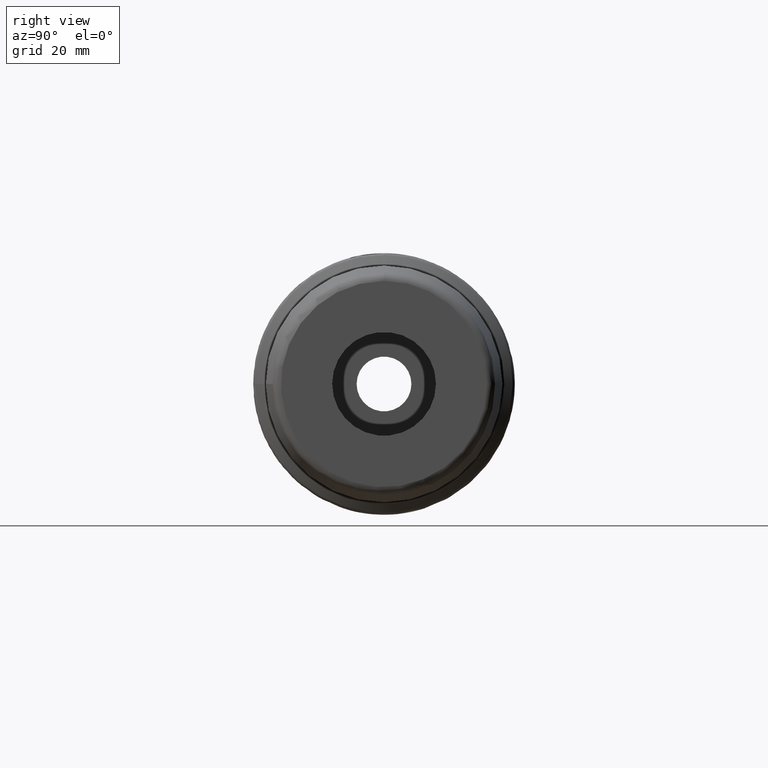
[diagram: clean part render]
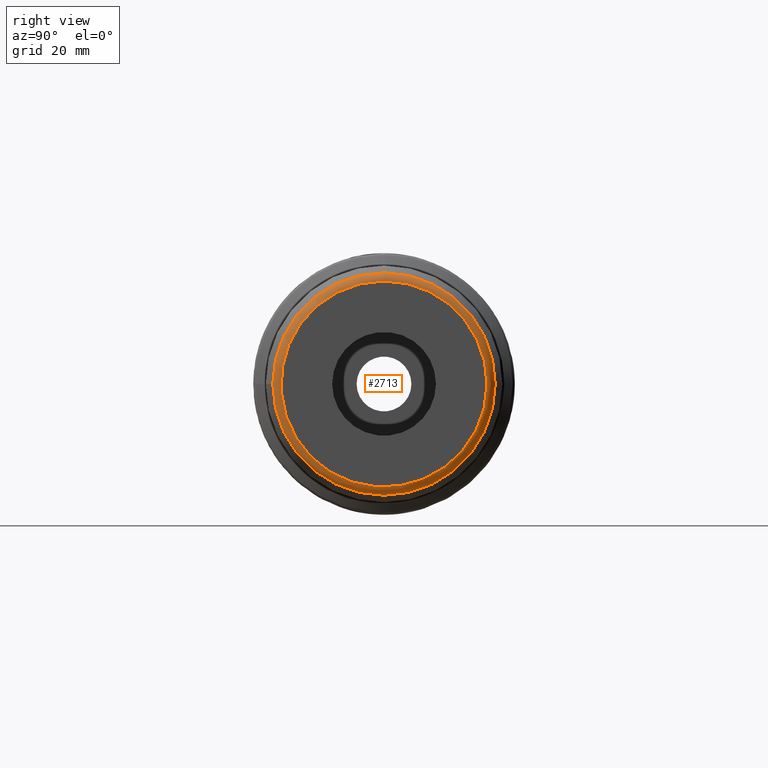
[diagram: same view with one face highlighted and labeled with its STEP entity id]
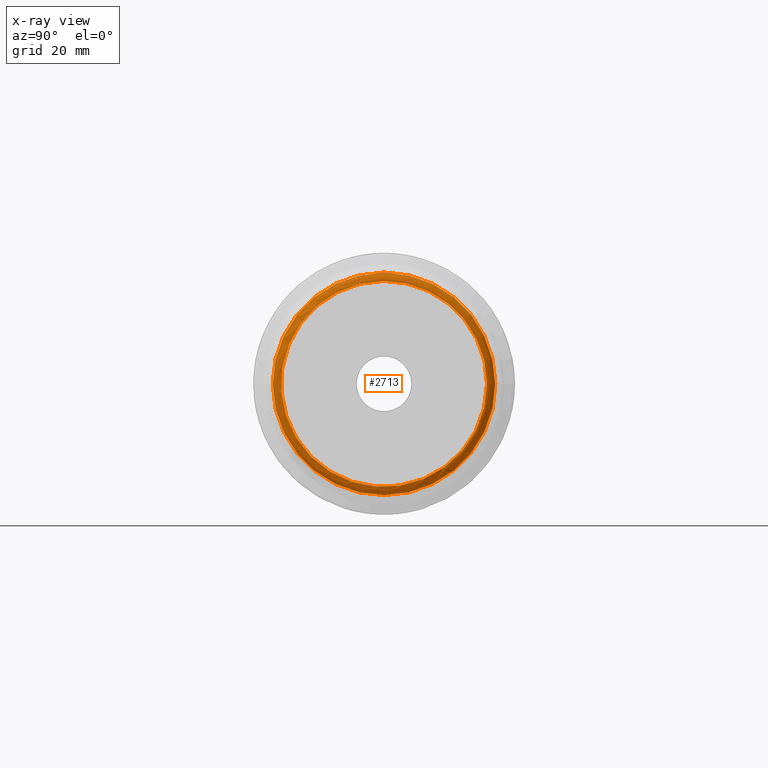
[diagram: x-ray of the same camera — body ghosted, the highlighted face saturated]
A machine part, right view. The second image highlights one B-rep face of the part: STEP entity #2713.
The next image is the same camera in x-ray: the body ghosted, the highlighted face saturated — about 0% of this face is hidden behind the body in this view.
In plain terms, the highlighted toroidal blend (fillet) surface has major radius 24.8218 mm and minor (blend) radius 2 mm.
Its self-contained STEP definition (entity closure, byte-faithful):
#495=FACE_OUTER_BOUND('',#640,.T.);
#640=EDGE_LOOP('',(#1996,#1997,#1998,#1999,#2000,#2001,#2002));
#860=CIRCLE('',#2973,26.7914162436698);
#861=CIRCLE('',#2974,26.7914162436698);
#862=CIRCLE('',#2975,26.7914162436698);
#863=CIRCLE('',#2977,24.8218007376454);
#864=CIRCLE('',#2978,2.);
#865=CIRCLE('',#2979,24.8218007376454);
#1093=VERTEX_POINT('',#4549);
#1094=VERTEX_POINT('',#4550);
#1095=VERTEX_POINT('',#4552);
#1096=VERTEX_POINT('',#4557);
#1097=VERTEX_POINT('',#4558);
#1433=EDGE_CURVE('',#1093,#1094,#860,.T.);
#1434=EDGE_CURVE('',#1095,#1093,#861,.T.);
#1436=EDGE_CURVE('',#1094,#1095,#862,.T.);
#1437=EDGE_CURVE('',#1096,#1097,#863,.T.);
#1438=EDGE_CURVE('',#1097,#1094,#864,.T.);
#1439=EDGE_CURVE('',#1097,#1096,#865,.T.);
#1996=ORIENTED_EDGE('',*,*,#1437,.T.);
#1997=ORIENTED_EDGE('',*,*,#1438,.T.);
#1998=ORIENTED_EDGE('',*,*,#1436,.T.);
#1999=ORIENTED_EDGE('',*,*,#1434,.T.);
#2000=ORIENTED_EDGE('',*,*,#1433,.T.);
#2001=ORIENTED_EDGE('',*,*,#1438,.F.);
#2002=ORIENTED_EDGE('',*,*,#1439,.T.);
#2657=TOROIDAL_SURFACE('',#2976,24.8218007376454,2.);
#2713=ADVANCED_FACE('',(#495),#2657,.T.);
#2973=AXIS2_PLACEMENT_3D('',#4551,#3508,#3509);
#2974=AXIS2_PLACEMENT_3D('',#4553,#3510,#3511);
#2975=AXIS2_PLACEMENT_3D('',#4555,#3513,#3514);
#2976=AXIS2_PLACEMENT_3D('',#4556,#3515,#3516);
#2977=AXIS2_PLACEMENT_3D('',#4559,#3517,#3518);
#2978=AXIS2_PLACEMENT_3D('',#4560,#3519,#3520);
#2979=AXIS2_PLACEMENT_3D('',#4561,#3521,#3522);
#3508=DIRECTION('center_axis',(1.,0.,0.));
#3509=DIRECTION('ref_axis',(0.,-1.,3.06161699786838E-17));
#3510=DIRECTION('center_axis',(1.,0.,0.));
#3511=DIRECTION('ref_axis',(0.,-1.,3.06161699786838E-17));
#3513=DIRECTION('center_axis',(1.,0.,0.));
#3514=DIRECTION('ref_axis',(0.,-1.,3.06161699786838E-17));
#3515=DIRECTION('center_axis',(1.,0.,0.));
#3516=DIRECTION('ref_axis',(0.,0.,-1.));
#3517=DIRECTION('center_axis',(-1.,0.,0.));
#3518=DIRECTION('ref_axis',(0.,-1.,1.83697019872103E-16));
#3519=DIRECTION('center_axis',(0.,-1.,-1.22464679914735E-16));
#3520=DIRECTION('ref_axis',(0.,-1.22464679914735E-16,1.));
#3521=DIRECTION('center_axis',(-1.,0.,0.));
#3522=DIRECTION('ref_axis',(0.,-1.,1.83697019872103E-16));
#4549=CARTESIAN_POINT('',(118.347296355334,26.7914162436698,-1.64050110737173E-15));
#4550=CARTESIAN_POINT('',(118.347296355334,-3.28100221474347E-15,26.7914162436698));
#4551=CARTESIAN_POINT('Origin',(118.347296355334,0.,-4.10125276842933E-15));
#4552=CARTESIAN_POINT('',(118.347296355334,-26.7914162436698,-3.28100221474347E-15));
#4553=CARTESIAN_POINT('Origin',(118.347296355334,0.,-4.10125276842933E-15));
#4555=CARTESIAN_POINT('Origin',(118.347296355334,0.,-4.10125276842933E-15));
#4556=CARTESIAN_POINT('Origin',(118.,0.,0.));
#4557=CARTESIAN_POINT('',(120.,24.8218007376454,-7.59948470560772E-15));
#4558=CARTESIAN_POINT('',(120.,-3.03979388224309E-15,24.8218007376454));
#4559=CARTESIAN_POINT('Origin',(120.,0.,0.));
#4560=CARTESIAN_POINT('Origin',(118.,-3.03979388224309E-15,24.8218007376454));
#4561=CARTESIAN_POINT('Origin',(120.,0.,0.));